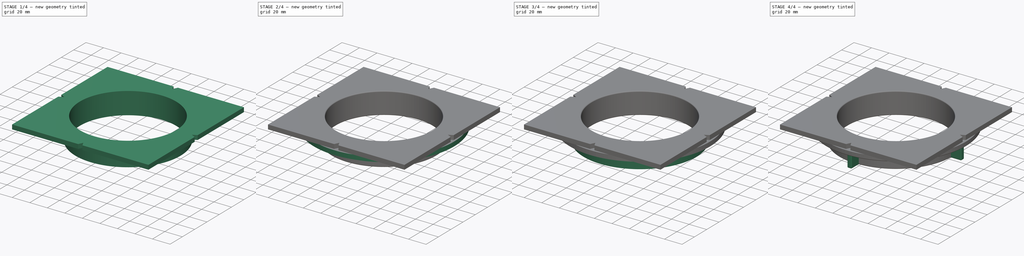
[diagram: build sequence overview — one tinted view per stage of 4, left to right]
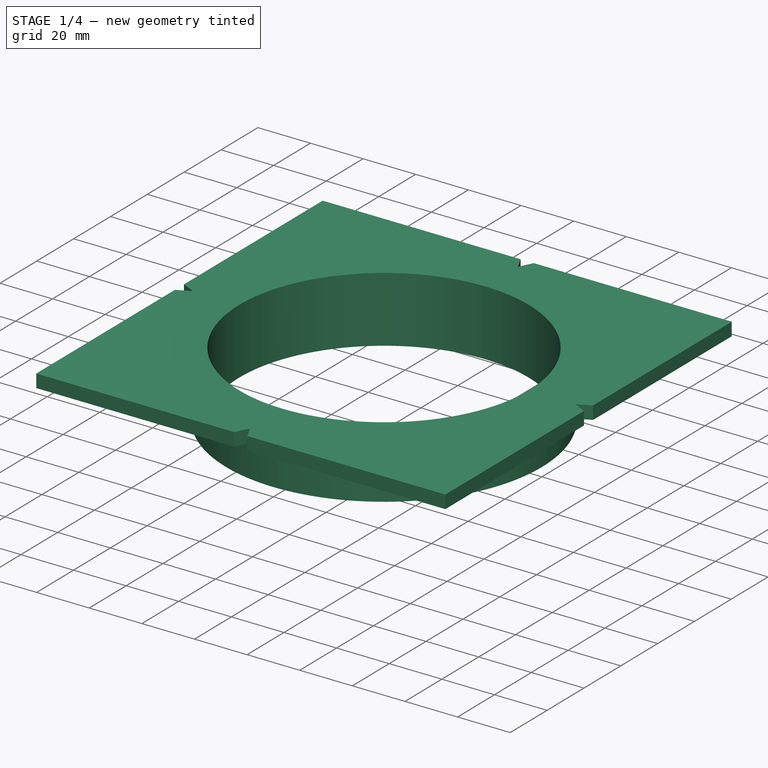
[diagram: stage 1 of 4 — iso view after this stage's code; geometry added in this stage tinted green]
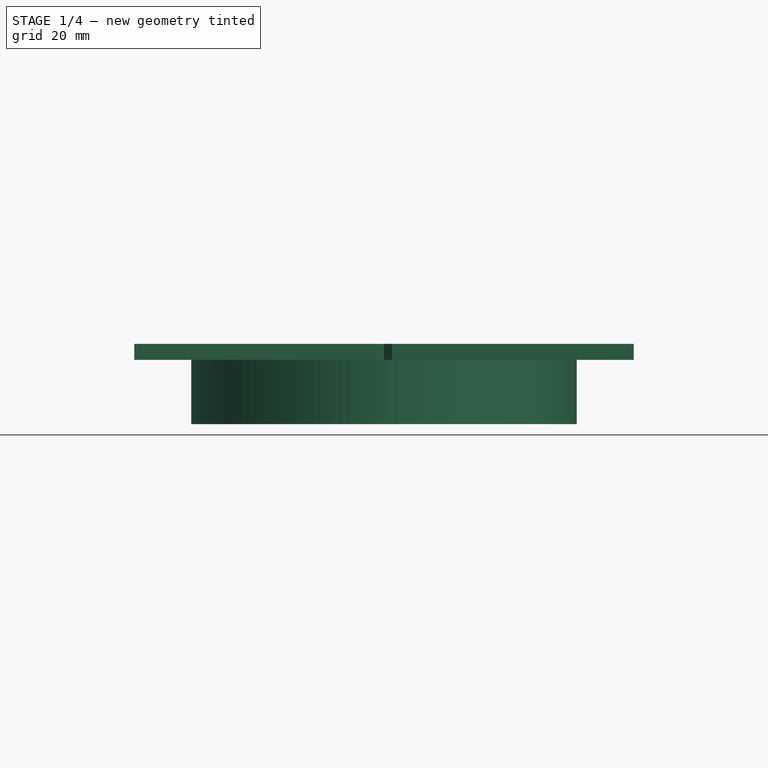
[diagram: stage 1 of 4 — front view after this stage's code; geometry added in this stage tinted green]
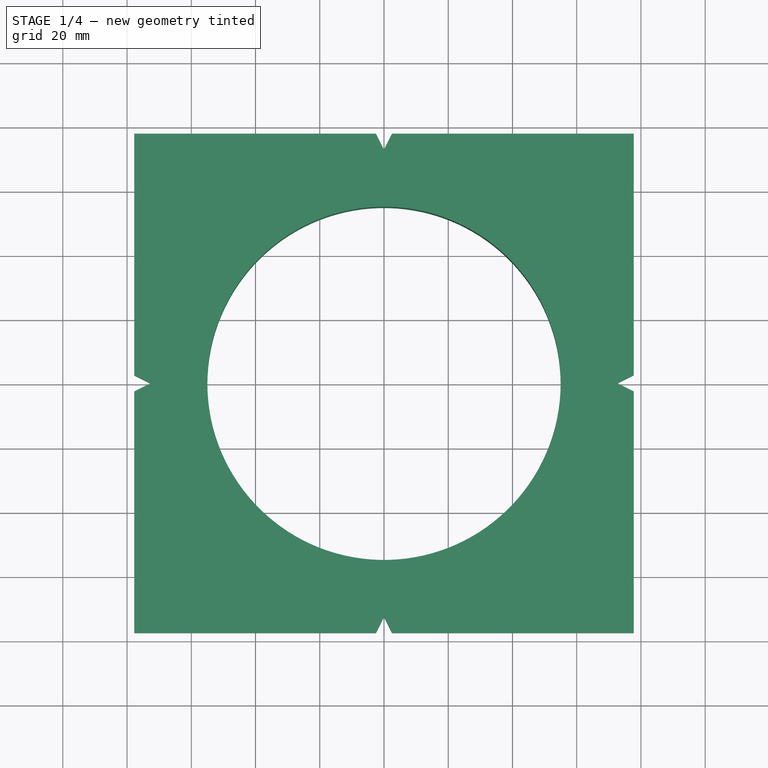
[diagram: stage 1 of 4 — top view after this stage's code; geometry added in this stage tinted green]
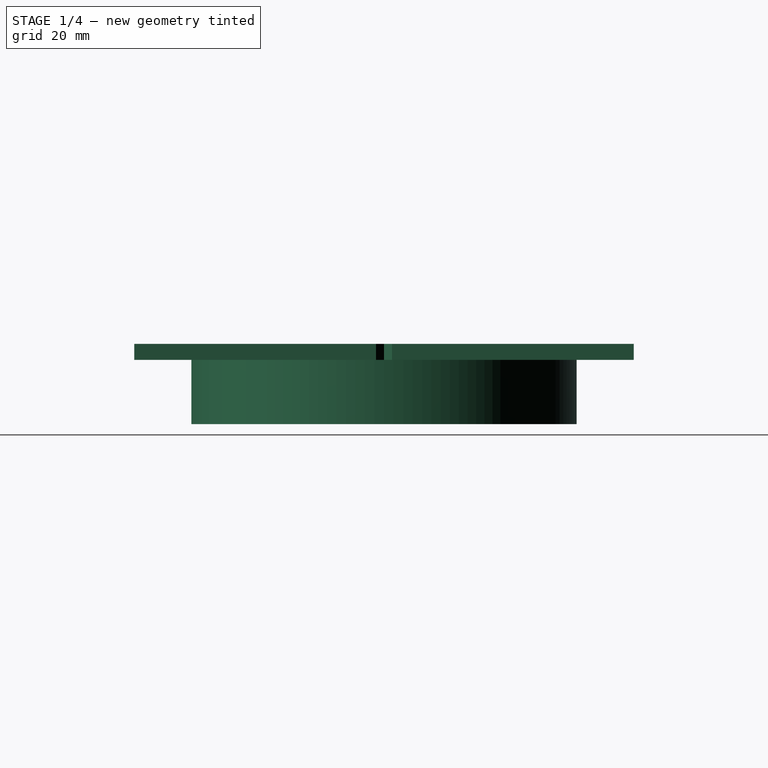
[diagram: stage 1 of 4 — right view after this stage's code; geometry added in this stage tinted green]
FCSTD DOCUMENT  (FreeCAD 2023.131R26244 +5365 (Git))
Label: Still Air Box Arm Ports
License: All rights reserved
LicenseURL: http://en.wikipedia.org/wiki/All_rights_reserved
objects: Sketcher::SketchObject×8, PartDesign::Pad×6, PartDesign::Body×3, PartDesign::AdditiveHelix×2, PartDesign::Fillet×2, Spreadsheet::Sheet×1, PartDesign::PolarPattern×1
note: 52 computed .brp shape members not serialized (recipe doc carries the construction recipe); baked Part::Feature solids carry a one-line shape summary decoded from their .brp

FEATURE [Spreadsheet::Sheet] Spreadsheet  label="Parameters"
  PythonMode = false
  ShowCells = 0
  TreeRank = 1
  cells = A1=Thickness; B1(thickness)=5; A2=Arm Hole Diameter; B2(hole_diameter)=110; A3=Fange Width; B3(flange_width)=25; A4=Outer Diameter; B4(outer_diameter)==hole_diameter + 2 * flange_width; A5=Overlap Width; B5(overlap)=20; A6=Gap Between Rings; B6(gap)=2; A8=Thread Pitch; B8(thread_pitch)=4; A9=Thread Depth; B9(thread_depth)=1.5; A10=Thread Angle; B10(thread_angle)=25
FEATURE [Sketcher::SketchObject] Sketch
  ArcFitTolerance = 1e-06
  AttachmentSupport = -> [XY_Plane]
  ExternalBSplineMaxDegree = 5
  ExternalBSplineTolerance = 0.0001
  FullyConstrained = true
  InternalTolerance = 1e-06
  InvalidShape = false
  MakeInternals = false
  MapMode = 5
  Support = -> [XY_Plane]
  TreeRank = 12
  ValidateShape = true
  expr: Constraints[1] = <<Parameters>>.hole_diameter
  expr: Constraints[27] = <<Parameters>>.hole_diameter + (<<Parameters>>.outer_diameter - <<Parameters>>.hole_diameter) / 2 + 2 * <<Parameters>>.thickness
  sketch-geometry (10):
    g0: Circle CenterX=0 CenterY=0 CenterZ=0 NormalX=0 NormalY=0 NormalZ=1 AngleXU=0 Radius=55
    g1: LineSegment StartX=0 StartY=72.5 StartZ=0 EndX=-51.2652 EndY=51.2652 EndZ=0
    g2: LineSegment StartX=-51.2652 StartY=51.2652 StartZ=0 EndX=-72.5 EndY=7.1e-15 EndZ=0
    g3: LineSegment StartX=-72.5 StartY=7.5e-15 StartZ=0 EndX=-51.2652 EndY=-51.2652 EndZ=0
    g4: LineSegment StartX=-51.2652 StartY=-51.2652 StartZ=0 EndX=-7.1e-15 EndY=-72.5 EndZ=0
    g5: LineSegment StartX=-1e-14 StartY=-72.5 StartZ=0 EndX=51.2652 EndY=-51.2652 EndZ=0
    g6: LineSegment StartX=51.2652 StartY=-51.2652 StartZ=0 EndX=72.5 EndY=0 EndZ=0
    g7: LineSegment StartX=72.5 StartY=-5e-16 StartZ=0 EndX=51.2652 EndY=51.2652 EndZ=0
    g8: LineSegment StartX=51.2652 StartY=51.2652 StartZ=0 EndX=0 EndY=72.5 EndZ=0
    g9: Circle [constr] CenterX=0 CenterY=0 CenterZ=0 NormalX=0 NormalY=0 NormalZ=1 AngleXU=0 Radius=72.5
  constraints (22):
    c: Coincident(g0,g-1)
    c: Diameter(g0) = 110
    c: Coincident(g1,g2)
    c: Coincident(g2,g3)
    c: Coincident(g3,g4)
    c: Coincident(g4,g5)
    c: Coincident(g5,g6)
    c: Coincident(g6,g7)
    c: Coincident(g7,g8)
    c: Coincident(g8,g1)
    c: Equal(g1, g2-g8) x7
    c: PointOnObject(g1,g9)
    c: PointOnObject(g2,g9)
    c: PointOnObject(g3,g9)
    c: PointOnObject(g4,g9)
    c: PointOnObject(g5,g9)
    c: PointOnObject(g6,g9)
    c: PointOnObject(g7,g9)
    c: PointOnObject(g8,g9)
    c: Coincident(g9,g0)
    c: PointOnObject(g8,g-2)
    c: Diameter(g9) = 145
FEATURE [PartDesign::Pad] Pad
  AddSubType = 0
  AlongSketchNormal = false
  AutoTaperInnerAngle = true
  CheckUpToFaceLimits = true
  ClaimChildren = false
  Direction = (0,0,1)
  Fit = 0
  FitJoin = 0
  InnerFit = 0
  InnerFitJoin = 0
  InvalidShape = false
  Length = 5
  Length2 = 100
  Linearize = true
  NewSolid = false
  Profile = -> Sketch
  Suppress = false
  TaperInnerAngle = 0
  TaperInnerAngleRev = 0
  TreeRank = 13
  Type = 0
  ValidateShape = true
  _ProfileBasedVersion = 1
  expr: Length = <<Parameters>>.thickness
FEATURE [Sketcher::SketchObject] Sketch001
  ArcFitTolerance = 1e-06
  AttachmentSupport = -> [XY_Plane]
  ExternalBSplineMaxDegree = 5
  ExternalBSplineTolerance = 0.0001
  FullyConstrained = true
  InternalTolerance = 1e-06
  InvalidShape = false
  MakeInternals = false
  MapMode = 5
  Support = -> [XY_Plane]
  TreeRank = 14
  ValidateShape = true
  expr: Constraints[2] = <<Parameters>>.hole_diameter
  expr: Constraints[3] = <<Parameters>>.hole_diameter + 2 * <<Parameters>>.thickness
  sketch-geometry (2):
    g0: Circle CenterX=0 CenterY=0 CenterZ=0 NormalX=0 NormalY=0 NormalZ=1 AngleXU=0 Radius=55
    g1: Circle CenterX=0 CenterY=0 CenterZ=0 NormalX=0 NormalY=0 NormalZ=1 AngleXU=0 Radius=60
  constraints (4):
    c: Coincident(g0,g-1)
    c: Coincident(g1,g0)
    c: Diameter(g0) = 110
    c: Diameter(g1) = 120
FEATURE [PartDesign::Pad] Pad001
  AddSubType = 0
  AlongSketchNormal = false
  AutoTaperInnerAngle = true
  BaseFeature = -> Pad
  CheckUpToFaceLimits = true
  ClaimChildren = false
  Direction = (0,0,1)
  Fit = 0
  FitJoin = 0
  InnerFit = 0
  InnerFitJoin = 0
  InvalidShape = false
  Length = 20
  Length2 = 100
  Linearize = true
  NewSolid = false
  Profile = -> Sketch001
  Reversed = true
  Suppress = false
  TaperInnerAngle = 0
  TaperInnerAngleRev = 0
  TreeRank = 15
  Type = 0
  ValidateShape = true
  _ProfileBasedVersion = 1
  expr: Length = <<Parameters>>.overlap
FEATURE [PartDesign::Body] Body  label="A"
  AutoGroupSolids = false
  ClaimAllChildren = false
  ExportMode = 0
  Group = -> [Sketch,Pad,Sketch001,Pad001,Sketch002,Helix,Fillet]
  InvalidShape = false
  Origin = -> Origin
  Tip = -> Fillet
  TreeRank = 11
  ValidateShape = true
  _ExportChildren = -> [Pad,Pad001,Helix,Fillet]
  _GroupVersion = 1
FEATURE [Sketcher::SketchObject] Sketch008
  ArcFitTolerance = 1e-06
  AttachmentSupport = -> [XY_Plane002]
  ExternalBSplineMaxDegree = 5
  ExternalBSplineTolerance = 0.0001
  FullyConstrained = true
  InternalTolerance = 1e-06
  InvalidShape = false
  MakeInternals = false
  MapMode = 5
  Support = -> [XY_Plane002]
  TreeRank = 56
  ValidateShape = true
  expr: Constraints[1] = <<Parameters>>.hole_diameter + 2 * <<Parameters>>.thickness + <<Parameters>>.thread_depth + <<Parameters>>.gap + 2
  sketch-geometry (20):
    g0: Circle CenterX=0 CenterY=0 CenterZ=0 NormalX=0 NormalY=0 NormalZ=1 AngleXU=0 Radius=62.75
    g1: LineSegment StartX=77.75 StartY=-77.75 StartZ=0 EndX=77.75 EndY=-2.5 EndZ=0
    g2: LineSegment StartX=77.75 StartY=77.75 StartZ=0 EndX=2.5 EndY=77.75 EndZ=0
    g3: LineSegment StartX=-77.75 StartY=77.75 StartZ=0 EndX=-77.75 EndY=2.5 EndZ=0
    g4: LineSegment StartX=-77.75 StartY=-77.75 StartZ=0 EndX=-2.5 EndY=-77.75 EndZ=0
    g5: GeomPoint [constr] X=0 Y=0 Z=0
    g6: LineSegment StartX=-2.5 StartY=77.75 StartZ=0 EndX=0 EndY=72.75 EndZ=0
    g7: LineSegment StartX=0 StartY=72.75 StartZ=0 EndX=2.5 EndY=77.75 EndZ=0
    g8: LineSegment StartX=72.75 StartY=0 StartZ=0 EndX=77.75 EndY=-2.5 EndZ=0
    g9: LineSegment StartX=72.75 StartY=0 StartZ=0 EndX=77.75 EndY=2.5 EndZ=0
    g10: LineSegment StartX=0 StartY=-72.75 StartZ=0 EndX=2.5 EndY=-77.75 EndZ=0
    g11: LineSegment StartX=0 StartY=-72.75 StartZ=0 EndX=-2.5 EndY=-77.75 EndZ=0
    g12: LineSegment StartX=-77.75 StartY=2.5 StartZ=0 EndX=-72.75 EndY=0 EndZ=0
    g13: LineSegment StartX=-77.75 StartY=-2.5 StartZ=0 EndX=-72.75 EndY=0 EndZ=0
    g14: LineSegment StartX=-2.5 StartY=77.75 StartZ=0 EndX=-77.75 EndY=77.75 EndZ=0
    g15: LineSegment StartX=77.75 StartY=2.5 StartZ=0 EndX=77.75 EndY=77.75 EndZ=0
    g16: LineSegment StartX=2.5 StartY=-77.75 StartZ=0 EndX=77.75 EndY=-77.75 EndZ=0
    g17: LineSegment StartX=-77.75 StartY=-2.5 StartZ=0 EndX=-77.75 EndY=-77.75 EndZ=0
    g18: GeomPoint [constr] X=0 Y=62.75 Z=0
    g19: GeomPoint [constr] X=62.75 Y=0 Z=0
  constraints (50):
    c: Coincident(g0,g-1)
    c: Diameter(g0) = 125.5
    c: Coincident(g15,g2)
    c: Coincident(g14,g3)
    c: Coincident(g17,g4)
    c: Coincident(g16,g1)
    c: Horizontal(g2)
    c: Horizontal(g4)
    c: Vertical(g1)
    c: Vertical(g3)
    c: Symmetric(g14,g1,g5)
    c: Coincident(g5,g0)
    c: PointOnObject(g6,g-2)
    c: Coincident(g7,g6)
    c: PointOnObject(g8,g-1)
    c: Coincident(g9,g8)
    c: PointOnObject(g10,g-2)
    c: Coincident(g11,g10)
    c: PointOnObject(g12,g-1)
    c: Coincident(g12,g13)
    c: Equal(g6,g9)
    c: Equal(g6,g11)
    c: Equal(g6,g13)
    c: DistanceX(g6,g7) = 5
    c: DistanceY(g6,g7) = 5
    c: Symmetric(g6,g7,g-2)
    c: Symmetric(g9,g8,g-1)
    c: Symmetric(g11,g10,g-2)
    c: Symmetric(g13,g12,g-1)
    c: DistanceX(g8,g9) = 5
    c: DistanceY(g10,g10) = 5
    c: DistanceX(g13,g12) = 5
    c: Coincident(g2,g7)
    c: Coincident(g14,g6)
    c: Coincident(g1,g8)
    c: Coincident(g15,g9)
    c: Coincident(g4,g11)
    c: Coincident(g16,g10)
    c: Coincident(g3,g12)
    c: Coincident(g17,g13)
    c: Horizontal(g14)
    c: Horizontal(g16)
    c: Vertical(g15)
    c: Vertical(g17)
    c: PointOnObject(g18,g0)
    c: PointOnObject(g18,g-2)
    c: DistanceY(g18,g6) = 10
    c: PointOnObject(g19,g0)
    c: PointOnObject(g19,g-1)
    c: DistanceX(g19,g8) = 10
FEATURE [PartDesign::Pad] Pad005
  AddSubType = 0
  AlongSketchNormal = false
  AutoTaperInnerAngle = true
  CheckUpToFaceLimits = true
  ClaimChildren = false
  Direction = (0,0,1)
  Fit = 0
  FitJoin = 0
  InnerFit = 0
  InnerFitJoin = 0
  InvalidShape = false
  Length = 5
  Length2 = 100
  Linearize = true
  NewSolid = false
  Profile = -> Sketch008
  Suppress = false
  TaperInnerAngle = 0
  TaperInnerAngleRev = 0
  TreeRank = 57
  Type = 0
  ValidateShape = true
  _ProfileBasedVersion = 1
  expr: Length = <<Parameters>>.thickness
FEATURE [PartDesign::Body] Body002  label="Template"
  AutoGroupSolids = false
  ClaimAllChildren = false
  ExportMode = 0
  Group = -> [Sketch008,Pad005]
  InvalidShape = false
  Origin = -> Origin002
  Tip = -> Pad005
  TreeRank = 55
  ValidateShape = true
  _ExportChildren = -> [Pad005]
  _GroupVersion = 1
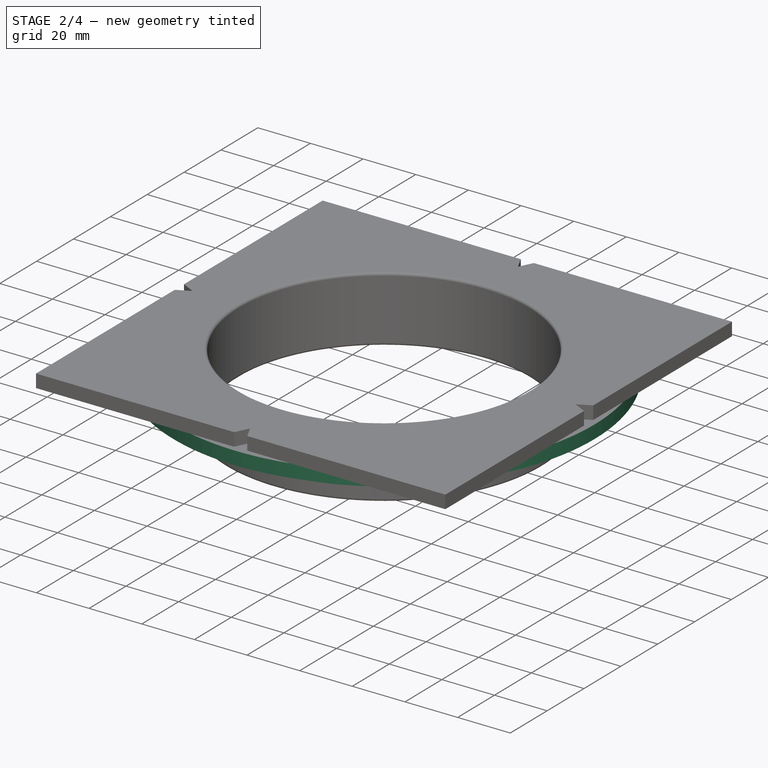
[diagram: stage 2 of 4 — iso view after this stage's code; geometry added in this stage tinted green]
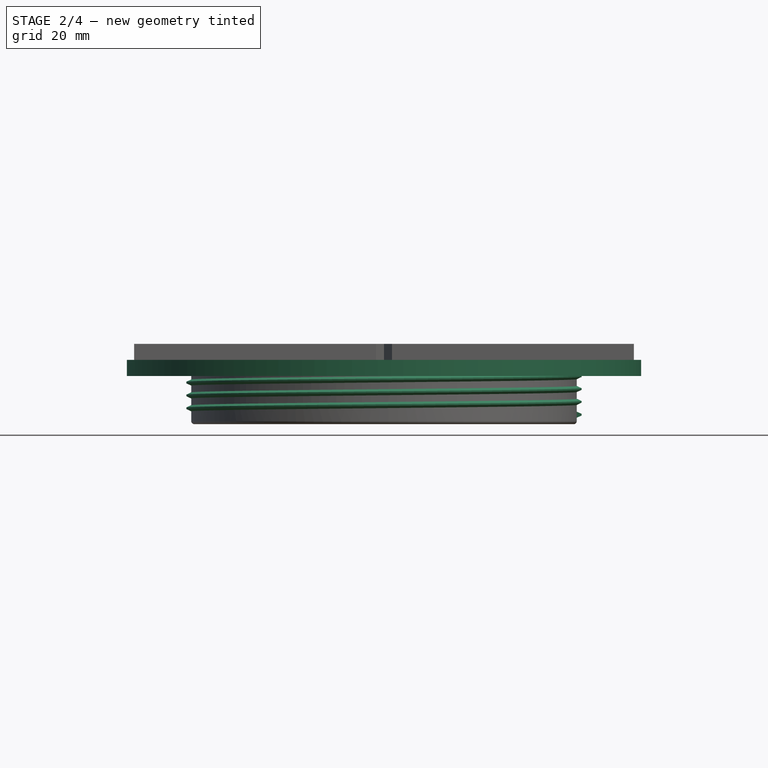
[diagram: stage 2 of 4 — front view after this stage's code; geometry added in this stage tinted green]
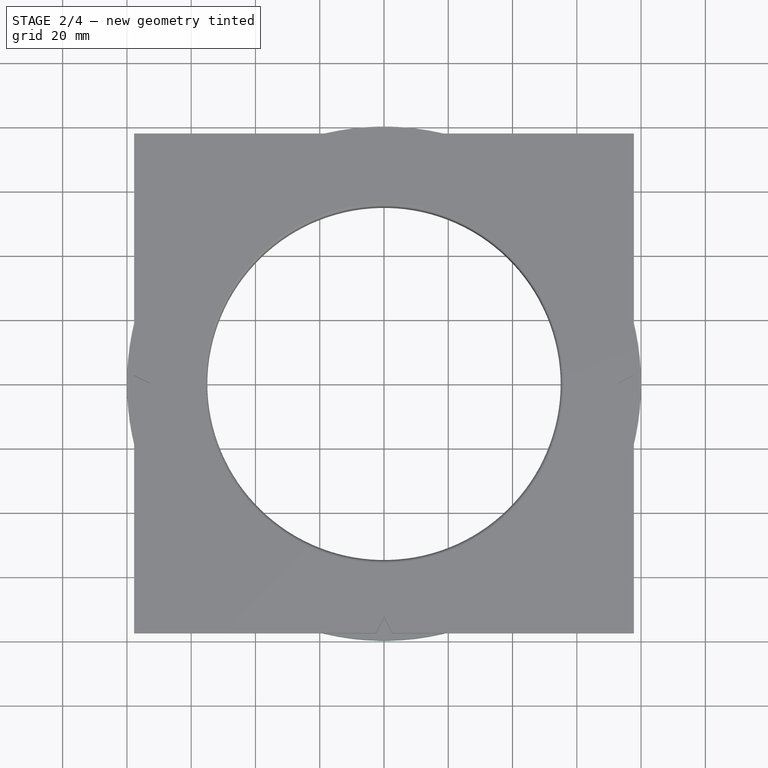
[diagram: stage 2 of 4 — top view after this stage's code; geometry added in this stage tinted green]
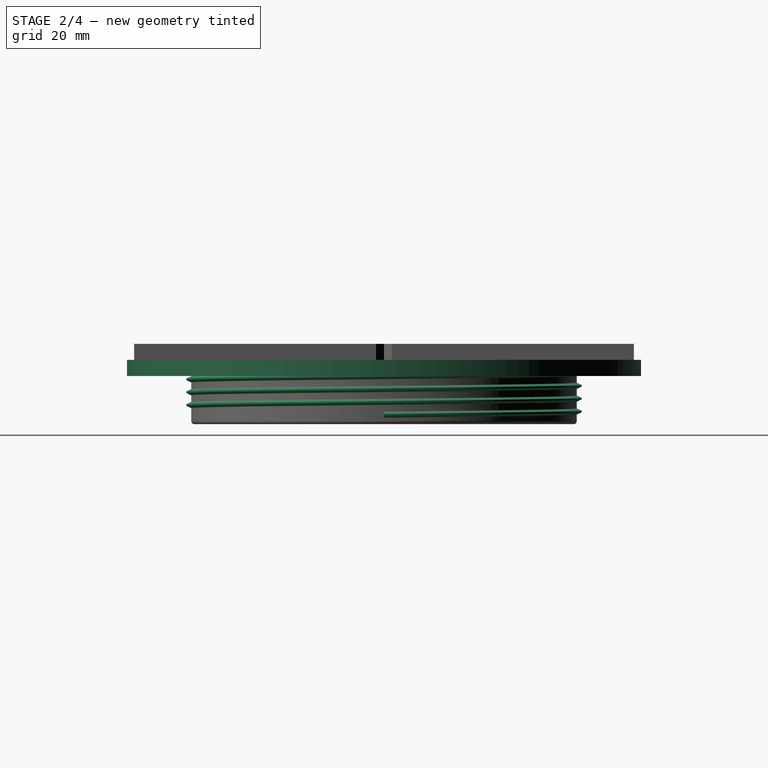
[diagram: stage 2 of 4 — right view after this stage's code; geometry added in this stage tinted green]
FEATURE [Sketcher::SketchObject] Sketch002
  ArcFitTolerance = 1e-06
  AttachmentSupport = -> [XZ_Plane]
  ExternalBSplineMaxDegree = 5
  ExternalBSplineTolerance = 0.0001
  FullyConstrained = true
  InternalTolerance = 1e-06
  InvalidShape = false
  MakeInternals = false
  MapMode = 5
  Placement = pos=(0,0,0) rot=(1,0,0;1.5708rad)
  Support = -> [XZ_Plane]
  TreeRank = 16
  ValidateShape = true
  expr: Constraints[10] = <<Parameters>>.hole_diameter / 2 + <<Parameters>>.thickness
  expr: Constraints[4] = 90 - <<Parameters>>.thread_angle
  expr: Constraints[8] = <<Parameters>>.thread_depth
  expr: Constraints[9] = <<Parameters>>.thread_pitch / 2.1
  sketch-geometry (4):
    g0: LineSegment StartX=-60 StartY=1.90476 StartZ=0 EndX=-60 EndY=0 EndZ=0
    g1: LineSegment StartX=-60 StartY=0 StartZ=0 EndX=-61.5 EndY=0.699461 EndZ=0
    g2: LineSegment StartX=-60 StartY=1.90476 StartZ=0 EndX=-61.5 EndY=1.2053 EndZ=0
    g3: LineSegment StartX=-61.5 StartY=0.699461 StartZ=0 EndX=-61.5 EndY=1.2053 EndZ=0
  constraints (12):
    c: Vertical(g0)
    c: Coincident(g1,g0)
    c: Coincident(g2,g0)
    c: Equal(g1,g2)
    c: Angle(g0,g1) = 1.13446
    c: Coincident(g3,g1)
    c: Coincident(g3,g2)
    c: Vertical(g3)
    c: DistanceX(g2,g0) = 1.5
    c: DistanceY(g0,g0) = 1.90476
    c: DistanceX(g0,g-1) = 60
    c: PointOnObject(g0,g-1)
FEATURE [PartDesign::AdditiveHelix] Helix
  AddSubType = 0
  Angle = 0
  Axis = (0,-2e-16,1)
  Base = (0,0,0)
  BaseFeature = -> Pad001
  ClaimChildren = false
  Fit = 0
  FitJoin = 0
  Growth = 0
  HasBeenEdited = true
  Height = 18
  InnerFit = 0
  InnerFitJoin = 0
  InvalidShape = false
  LeftHanded = false
  Linearize = true
  Mode = 0
  NewSolid = false
  Outside = false
  Pitch = 4
  Profile = -> Sketch002
  ReferenceAxis = -> Sketch002 [V_Axis]
  Reversed = true
  Suppress = false
  TreeRank = 17
  Turns = 4.5
  ValidateShape = true
  _ProfileBasedVersion = 1
  expr: Height = <<Parameters>>.overlap - <<Parameters>>.thread_pitch / 2
  expr: Pitch = <<Parameters>>.thread_pitch
FEATURE [Sketcher::SketchObject] Sketch004
  ArcFitTolerance = 1e-06
  AttachmentSupport = -> [XY_Plane001]
  ExternalBSplineMaxDegree = 5
  ExternalBSplineTolerance = 0.0001
  FullyConstrained = true
  InternalTolerance = 1e-06
  InvalidShape = false
  MakeInternals = false
  MapMode = 5
  Support = -> [XY_Plane001]
  TreeRank = 32
  ValidateShape = true
  expr: Constraints[1] = <<Parameters>>.outer_diameter
  expr: Constraints[3] = <<Parameters>>.hole_diameter + 2 * <<Parameters>>.thickness + <<Parameters>>.thread_depth + <<Parameters>>.gap
  sketch-geometry (2):
    g0: Circle CenterX=0 CenterY=0 CenterZ=0 NormalX=0 NormalY=0 NormalZ=1 AngleXU=0 Radius=80
    g1: Circle CenterX=0 CenterY=0 CenterZ=0 NormalX=0 NormalY=0 NormalZ=1 AngleXU=0 Radius=61.75
  constraints (4):
    c: Coincident(g0,g-1)
    c: Diameter(g0) = 160
    c: Coincident(g1,g0)
    c: Diameter(g1) = 123.5
FEATURE [PartDesign::Pad] Pad002
  AddSubType = 0
  AlongSketchNormal = false
  AutoTaperInnerAngle = true
  CheckUpToFaceLimits = true
  ClaimChildren = false
  Direction = (0,0,1)
  Fit = 0
  FitJoin = 0
  InnerFit = 0
  InnerFitJoin = 0
  InvalidShape = false
  Length = 5
  Length2 = 100
  Linearize = true
  NewSolid = false
  Profile = -> Sketch004
  Reversed = true
  Suppress = false
  TaperInnerAngle = 0
  TaperInnerAngleRev = 0
  TreeRank = 33
  Type = 0
  ValidateShape = true
  _ProfileBasedVersion = 1
  expr: Length = <<Parameters>>.thickness
FEATURE [PartDesign::Body] Body001  label="B"
  AutoGroupSolids = false
  ClaimAllChildren = false
  ExportMode = 0
  Group = -> [Sketch004,Pad002,Sketch005,Pad003,Sketch006,Helix001,Sketch007,Pad004,PolarPattern001,Fillet001]
  InvalidShape = false
  Origin = -> Origin001
  Tip = -> Fillet001
  TreeRank = 31
  ValidateShape = true
  _ExportChildren = -> [Pad002,Pad003,Helix001,Pad004,PolarPattern001,Fillet001]
  _GroupVersion = 1
FEATURE [PartDesign::Fillet] Fillet
  AddSubType = 0
  Base = -> Helix [Face5,Face26]
  BaseFeature = -> Helix
  InvalidShape = false
  NewSolid = false
  Radius = 1
  SupportTransform = false
  Suppress = false
  TreeRank = 45
  ValidateShape = true
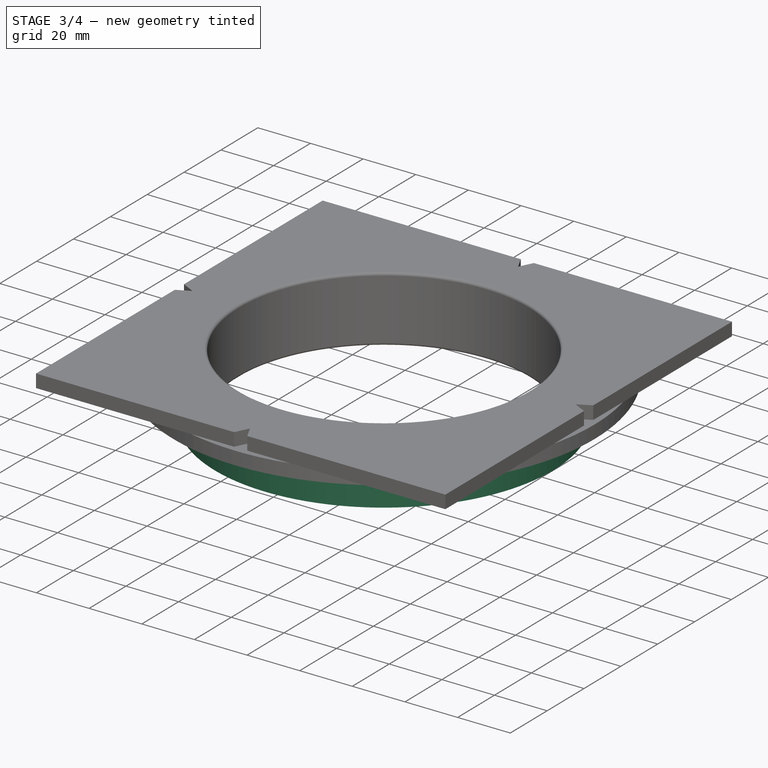
[diagram: stage 3 of 4 — iso view after this stage's code; geometry added in this stage tinted green]
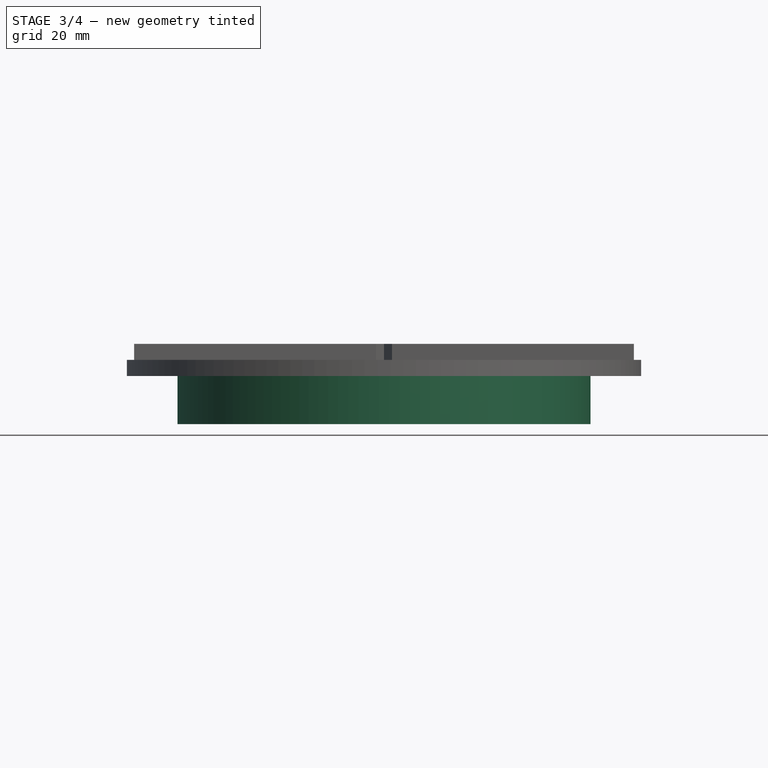
[diagram: stage 3 of 4 — front view after this stage's code; geometry added in this stage tinted green]
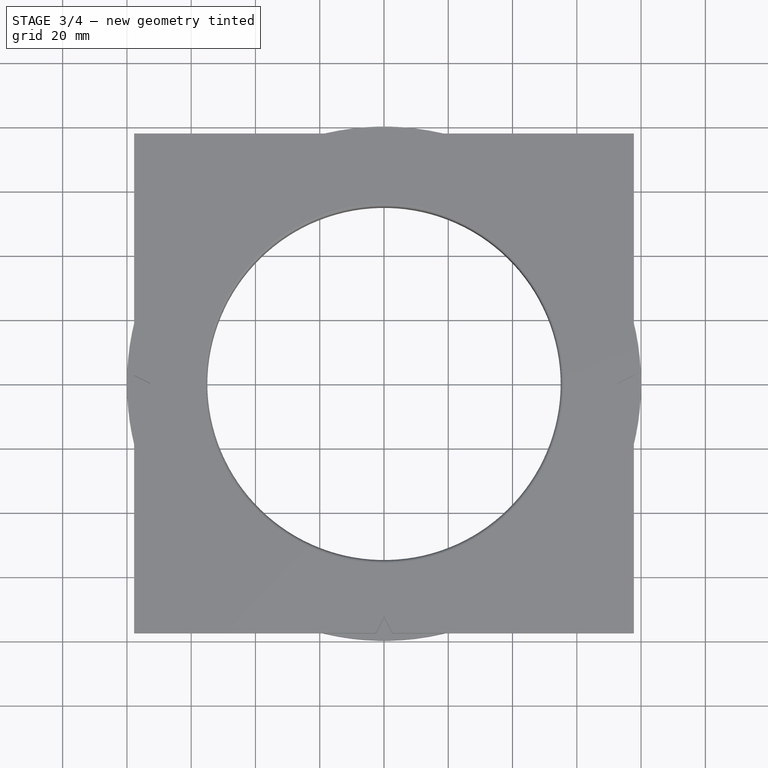
[diagram: stage 3 of 4 — top view after this stage's code; geometry added in this stage tinted green]
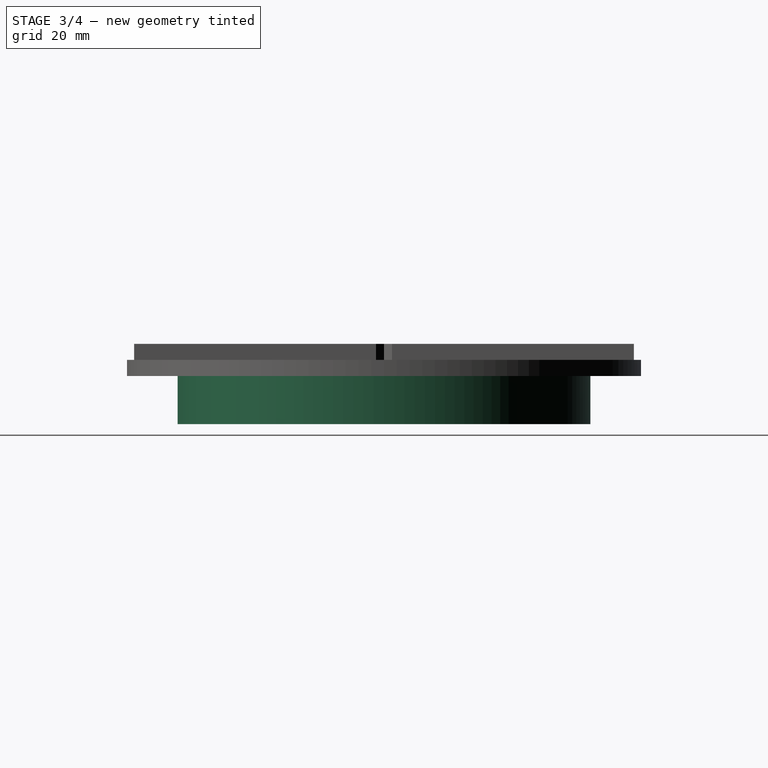
[diagram: stage 3 of 4 — right view after this stage's code; geometry added in this stage tinted green]
FEATURE [Sketcher::SketchObject] Sketch005
  ArcFitTolerance = 1e-06
  AttachmentSupport = -> [XY_Plane001]
  ExternalBSplineMaxDegree = 5
  ExternalBSplineTolerance = 0.0001
  FullyConstrained = true
  InternalTolerance = 1e-06
  InvalidShape = false
  MakeInternals = false
  MapMode = 5
  Support = -> [XY_Plane001]
  TreeRank = 34
  ValidateShape = true
  expr: Constraints[1] = <<Parameters>>.hole_diameter + 2 * <<Parameters>>.thickness + <<Parameters>>.thread_depth + <<Parameters>>.gap
  expr: Constraints[3] = <<Parameters>>.hole_diameter + 3 * <<Parameters>>.thickness + <<Parameters>>.thread_depth + <<Parameters>>.gap
  sketch-geometry (2):
    g0: Circle CenterX=0 CenterY=0 CenterZ=0 NormalX=0 NormalY=0 NormalZ=1 AngleXU=0 Radius=61.75
    g1: Circle CenterX=0 CenterY=0 CenterZ=0 NormalX=0 NormalY=0 NormalZ=1 AngleXU=0 Radius=64.25
  constraints (4):
    c: Coincident(g0,g-1)
    c: Diameter(g0) = 123.5
    c: Coincident(g1,g0)
    c: Diameter(g1) = 128.5
FEATURE [PartDesign::Pad] Pad003
  AddSubType = 0
  AlongSketchNormal = false
  AutoTaperInnerAngle = true
  BaseFeature = -> Pad002
  CheckUpToFaceLimits = true
  ClaimChildren = false
  Direction = (0,0,1)
  Fit = 0
  FitJoin = 0
  InnerFit = 0
  InnerFitJoin = 0
  InvalidShape = false
  Length = 20
  Length2 = 100
  Linearize = true
  NewSolid = false
  Profile = -> Sketch005
  Reversed = true
  Suppress = false
  TaperInnerAngle = 0
  TaperInnerAngleRev = 0
  TreeRank = 35
  Type = 0
  ValidateShape = true
  _ProfileBasedVersion = 1
  expr: Length = <<Parameters>>.overlap
FEATURE [Sketcher::SketchObject] Sketch006
  ArcFitTolerance = 1e-06
  AttachmentSupport = -> [XZ_Plane001]
  ExternalBSplineMaxDegree = 5
  ExternalBSplineTolerance = 0.0001
  FullyConstrained = true
  InternalTolerance = 1e-06
  InvalidShape = false
  MakeInternals = false
  MapMode = 5
  Placement = pos=(0,0,0) rot=(1,0,0;1.5708rad)
  Support = -> [XZ_Plane001]
  TreeRank = 36
  ValidateShape = true
  expr: Constraints[11] = (<<Parameters>>.hole_diameter + 2 * <<Parameters>>.thickness + <<Parameters>>.thread_depth + <<Parameters>>.gap) / 2
  expr: Constraints[7] = 90 - <<Parameters>>.thread_angle
  expr: Constraints[8] = <<Parameters>>.thread_pitch / 2.1
  expr: Constraints[9] = <<Parameters>>.thread_depth
  sketch-geometry (4):
    g0: LineSegment StartX=-61.75 StartY=0 StartZ=0 EndX=-61.75 EndY=-1.90476 EndZ=0
    g1: LineSegment StartX=-61.75 StartY=0 StartZ=0 EndX=-60.25 EndY=-0.699461 EndZ=0
    g2: LineSegment StartX=-61.75 StartY=-1.90476 StartZ=0 EndX=-60.25 EndY=-1.2053 EndZ=0
    g3: LineSegment StartX=-60.25 StartY=-0.699461 StartZ=0 EndX=-60.25 EndY=-1.2053 EndZ=0
  constraints (12):
    c: Vertical(g0)
    c: Coincident(g1,g0)
    c: Coincident(g2,g0)
    c: Coincident(g3,g1)
    c: Coincident(g3,g2)
    c: Vertical(g3)
    c: Equal(g1,g2)
    c: Angle(g2,g0) = 1.13446
    c: DistanceY(g0,g0) = 1.90476
    c: DistanceX(g0,g1) = 1.5
    c: PointOnObject(g0,g-1)
    c: DistanceX(g0,g-1) = 61.75
FEATURE [PartDesign::AdditiveHelix] Helix001
  AddSubType = 0
  Angle = 0
  Axis = (0,-2e-16,1)
  Base = (0,0,0)
  BaseFeature = -> Pad003
  ClaimChildren = false
  Fit = 0
  FitJoin = 0
  Growth = 0
  HasBeenEdited = true
  Height = 16
  InnerFit = 0
  InnerFitJoin = 0
  InvalidShape = false
  LeftHanded = false
  Linearize = true
  Mode = 0
  NewSolid = false
  Outside = false
  Pitch = 4
  Profile = -> Sketch006
  ReferenceAxis = -> Sketch006 [V_Axis]
  Reversed = true
  Suppress = false
  TreeRank = 37
  Turns = 4
  ValidateShape = true
  _ProfileBasedVersion = 1
  expr: Height = <<Parameters>>.overlap - <<Parameters>>.thread_pitch
  expr: Pitch = <<Parameters>>.thread_pitch
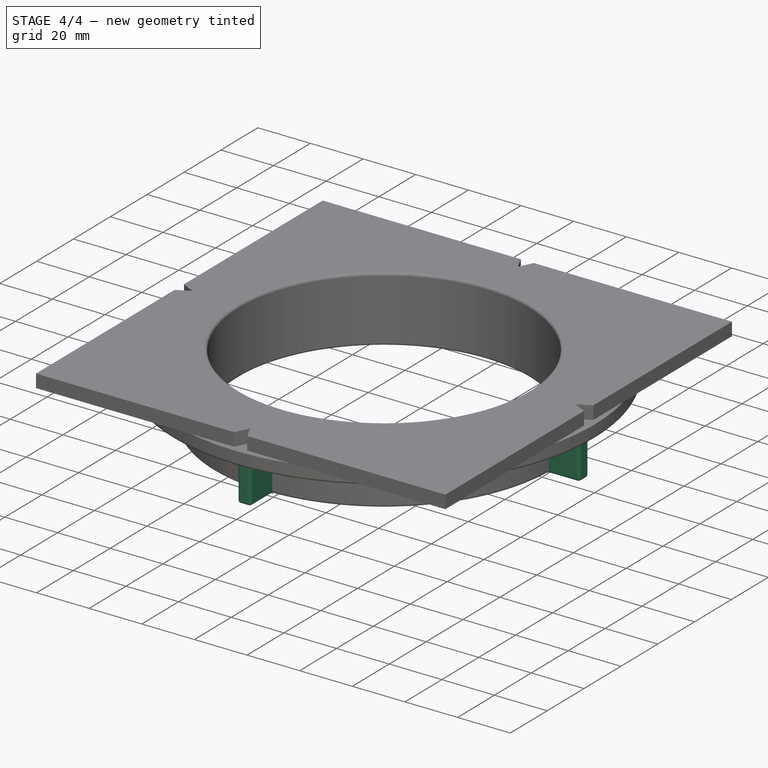
[diagram: stage 4 of 4 — iso view after this stage's code; geometry added in this stage tinted green]
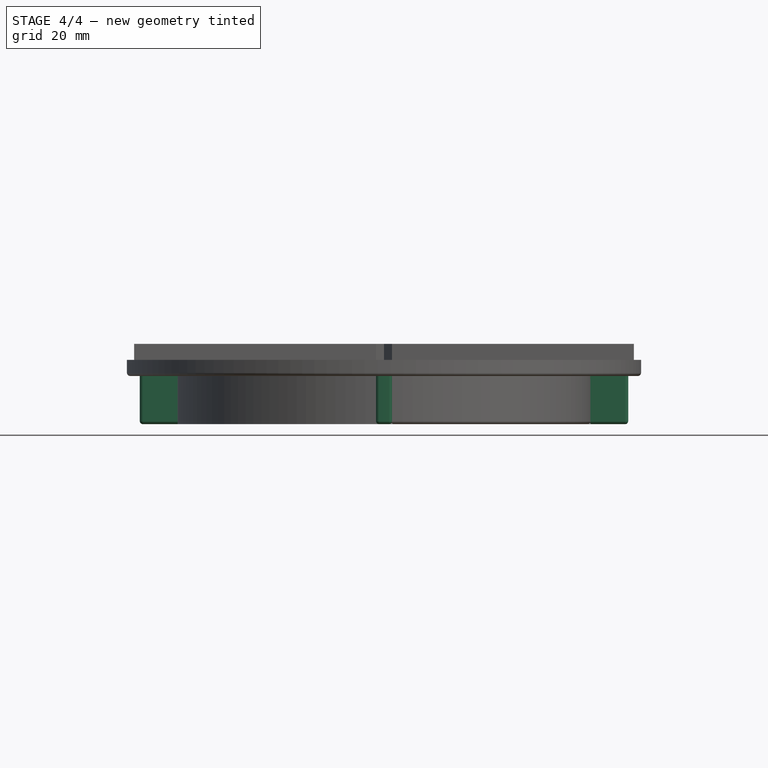
[diagram: stage 4 of 4 — front view after this stage's code; geometry added in this stage tinted green]
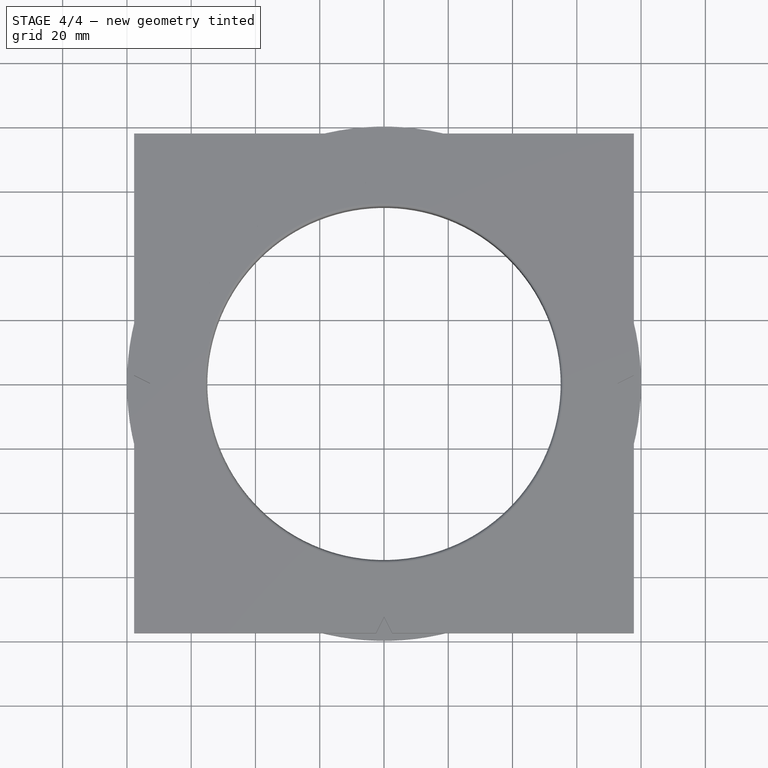
[diagram: stage 4 of 4 — top view after this stage's code; geometry added in this stage tinted green]
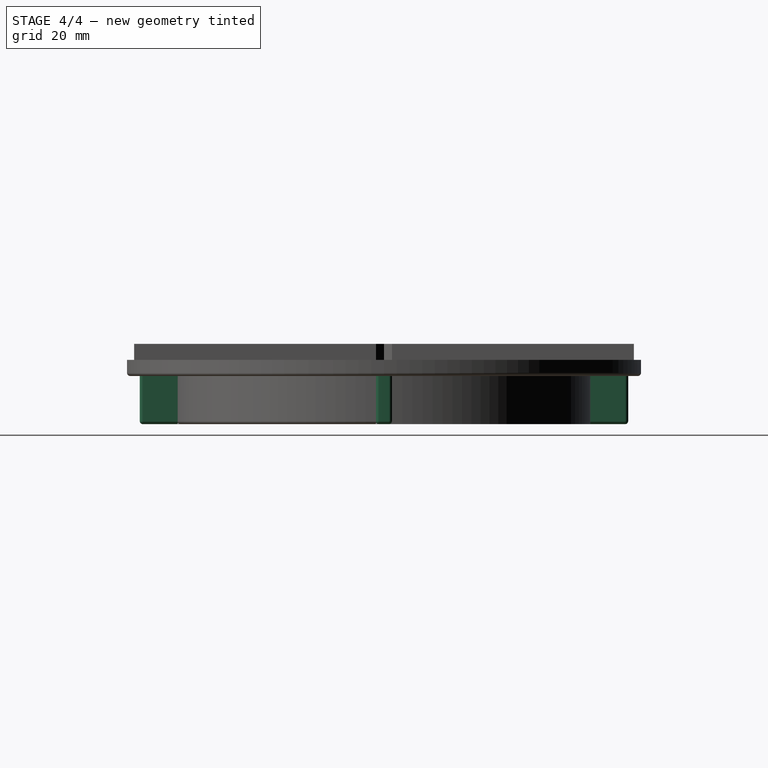
[diagram: stage 4 of 4 — right view after this stage's code; geometry added in this stage tinted green]
FEATURE [Sketcher::SketchObject] Sketch007
  ArcFitTolerance = 1e-06
  AttachmentSupport = -> [XY_Plane001]
  ExternalBSplineMaxDegree = 5
  ExternalBSplineTolerance = 0.0001
  FullyConstrained = true
  InternalTolerance = 1e-06
  InvalidShape = false
  MakeInternals = false
  MapMode = 5
  Support = -> [XY_Plane001]
  TreeRank = 39
  ValidateShape = true
  expr: Constraints[2] = <<Parameters>>.hole_diameter + 3 * <<Parameters>>.thickness + <<Parameters>>.thread_depth + 1
  expr: Constraints[3] = <<Parameters>>.outer_diameter - 8
  expr: Constraints[7] = <<Parameters>>.thickness
  sketch-geometry (4):
    g0: ArcOfCircle CenterX=0 CenterY=0 CenterZ=0 NormalX=0 NormalY=0 NormalZ=1 AngleXU=0 Radius=76 StartAngle=3.10869 EndAngle=3.17449
    g1: ArcOfCircle CenterX=0 CenterY=0 CenterZ=0 NormalX=0 NormalY=0 NormalZ=1 AngleXU=0 Radius=63.75 StartAngle=3.10237 EndAngle=3.18082
    g2: LineSegment StartX=-75.9589 StartY=2.5 StartZ=0 EndX=-63.701 EndY=2.5 EndZ=0
    g3: LineSegment StartX=-75.9589 StartY=-2.5 StartZ=0 EndX=-63.701 EndY=-2.5 EndZ=0
  constraints (12):
    c: Coincident(g0,g-1)
    c: Coincident(g1,g0)
    c: Diameter(g1) = 127.5
    c: Diameter(g0) = 152
    c: Horizontal(g2)
    c: Horizontal(g3)
    c: Equal(g2,g3)
    c: DistanceY(g3,g2) = 5
    c: Coincident(g1,g3)
    c: Coincident(g1,g2)
    c: Coincident(g0,g3)
    c: Coincident(g0,g2)
FEATURE [PartDesign::Pad] Pad004
  AddSubType = 0
  AlongSketchNormal = false
  AutoTaperInnerAngle = true
  BaseFeature = -> Helix001
  CheckUpToFaceLimits = true
  ClaimChildren = false
  Direction = (0,0,1)
  Fit = 0
  FitJoin = 0
  InnerFit = 0
  InnerFitJoin = 0
  InvalidShape = false
  Length = 20
  Length2 = 100
  Linearize = true
  NewSolid = false
  Profile = -> Sketch007
  Reversed = true
  Suppress = false
  TaperInnerAngle = 0
  TaperInnerAngleRev = 0
  TreeRank = 40
  Type = 0
  ValidateShape = true
  _ProfileBasedVersion = 1
  expr: Length = <<Parameters>>.overlap
FEATURE [PartDesign::PolarPattern] PolarPattern001
  AddSubType = 0
  Angle = 360
  Axis = -> Sketch007 [N_Axis]
  BaseFeature = -> Pad004
  CopyShape = false
  InvalidShape = false
  NewSolid = false
  Occurrences = 4
  OriginalSubs = -> [Pad004]
  Originals = -> [Pad004]
  ParallelTransform = true
  SubTransform = true
  Suppress = false
  TreeRank = 41
  ValidateShape = true
  _Version = 3
FEATURE [PartDesign::Fillet] Fillet001
  AddSubType = 0
  Base = -> PolarPattern001 [Edge59,Edge60,Edge58,Edge63,Edge86,Edge82,Edge84,Edge83,Edge61,Edge85,Edge68,Edge67,Edge66,Edge71,Edge69,Edge75,Edge74,Edge79,Edge77,Edge76,Edge3,Edge107,Edge81]
  BaseFeature = -> PolarPattern001
  InvalidShape = false
  NewSolid = false
  Radius = 1
  SupportTransform = false
  Suppress = false
  TreeRank = 44
  ValidateShape = true
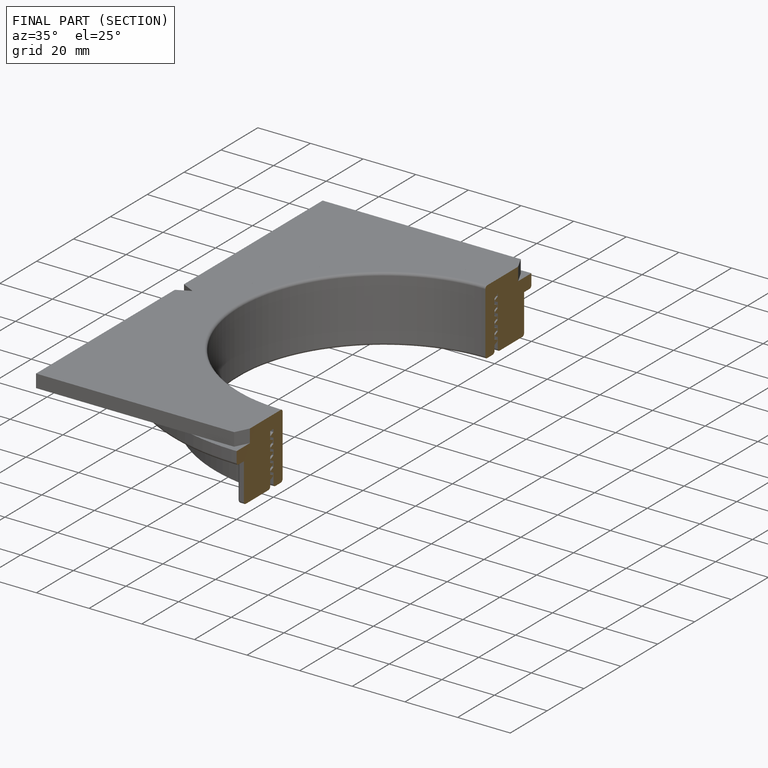
[diagram: finished part — half-section view (interior)]
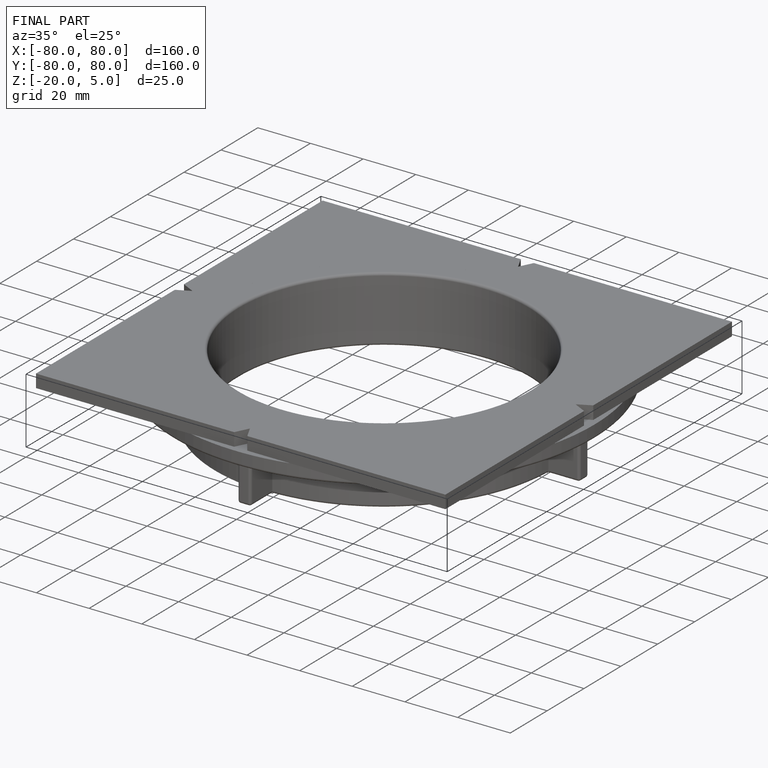
[diagram: finished part — iso view with bounding-box wireframe]
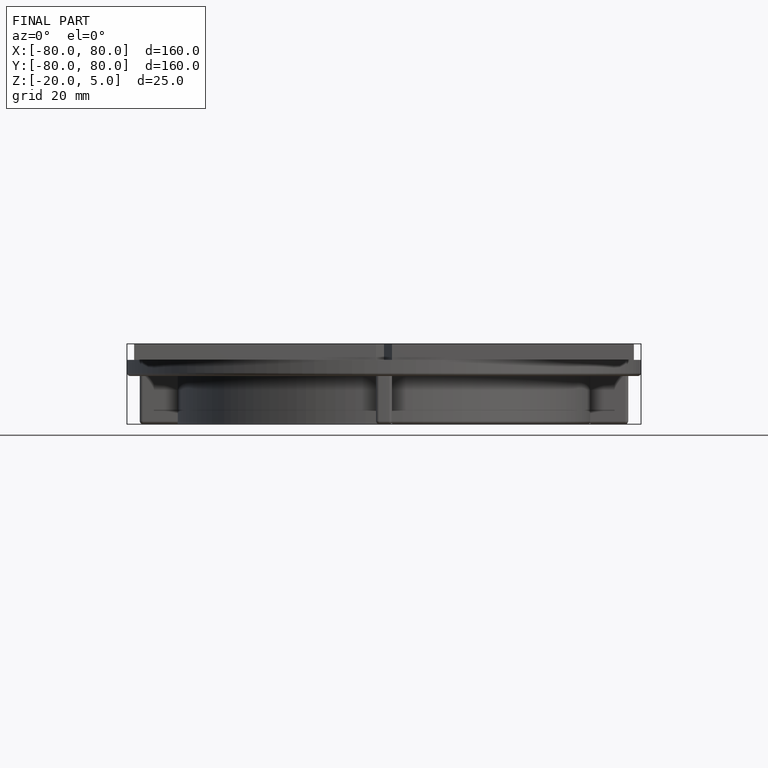
[diagram: finished part — front view with bounding-box wireframe]
